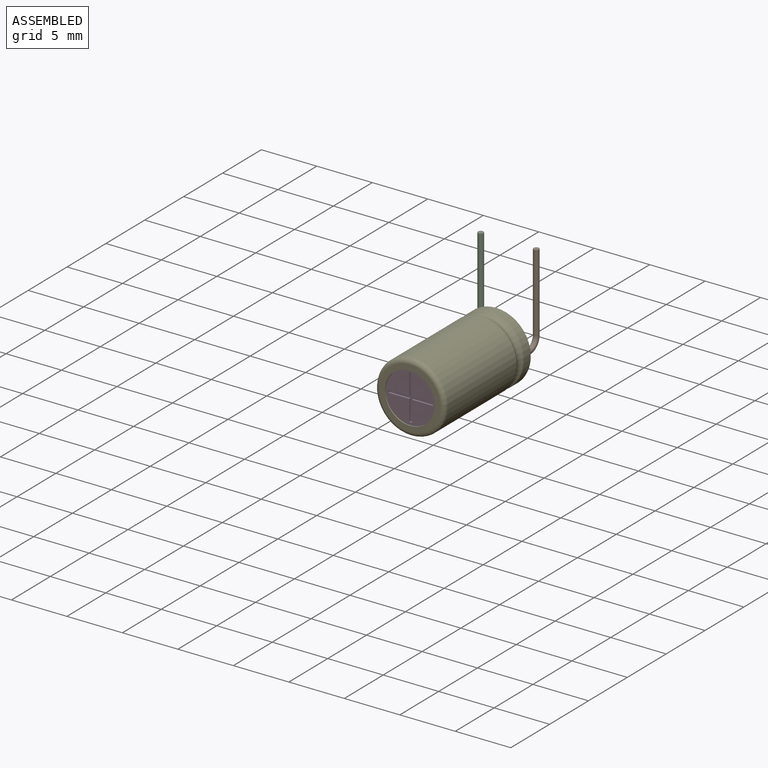
[diagram: assembled view]
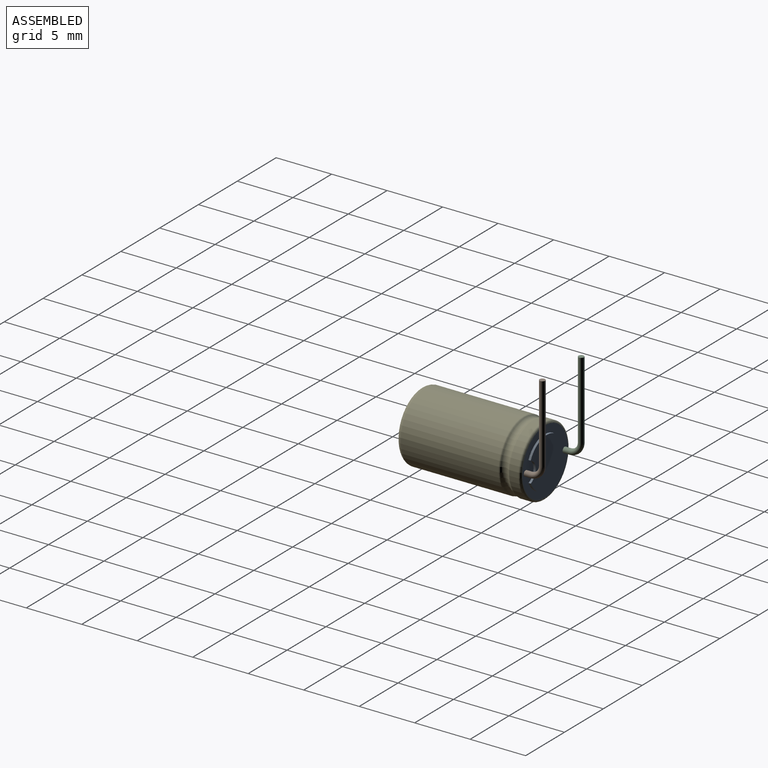
[diagram: assembled view, second angle]
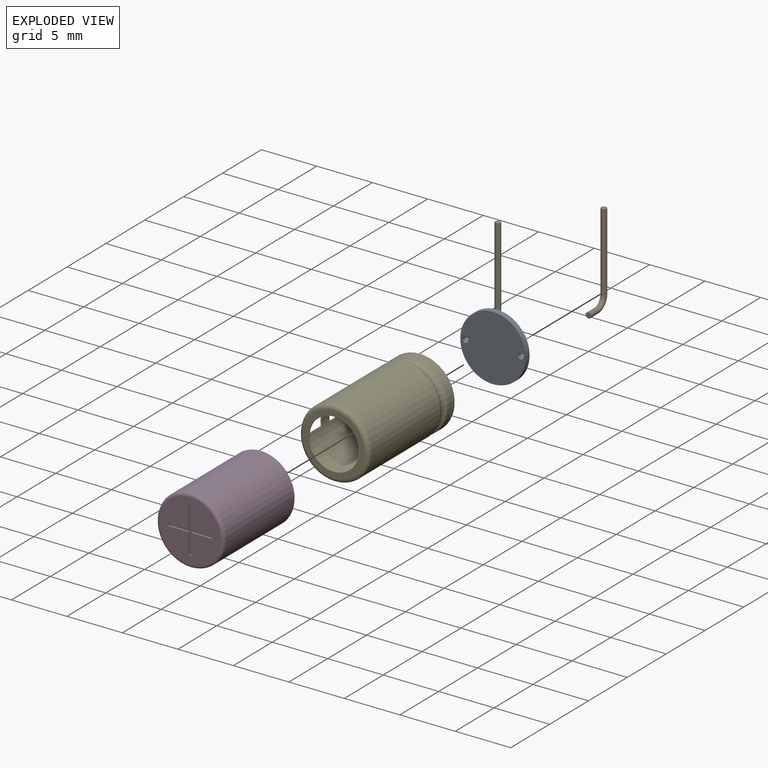
[diagram: exploded view]
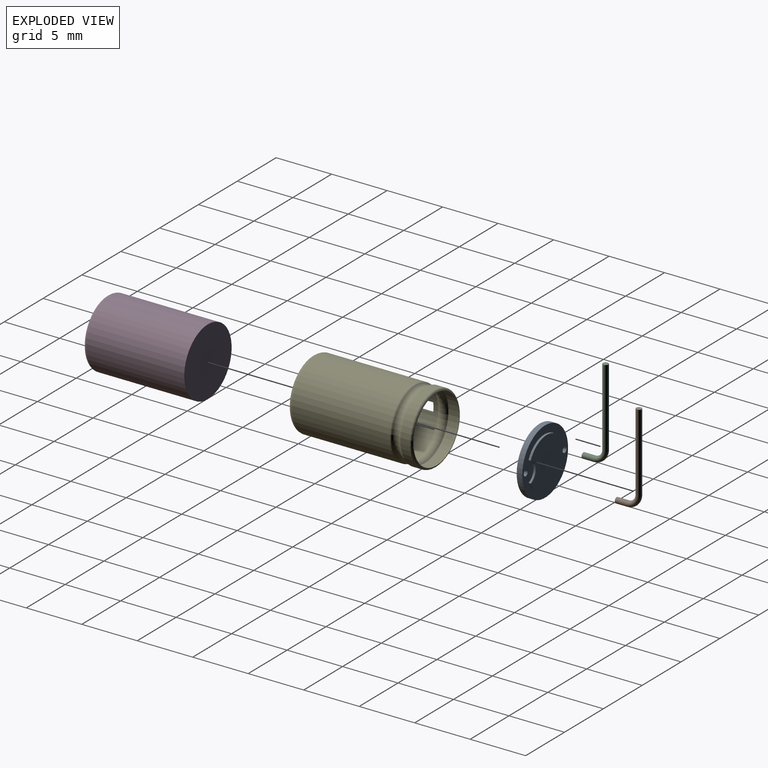
[diagram: exploded view, second angle]
ASSEMBLY  parts=5 mates=4
PART A: 10 faces, bbox 5.9x0.7x5.9 mm
  f0: plane 5.9x5.9mm, normal (0,-1,0), area 13mm2, adj f1,f3,f4,f5,f6,f7,f8
  f1: cylinder r=2.95mm len=5.9mm, axis (0,1,0), area 9.3mm2, adj f0,f2
  f2: plane 5.9x5.9mm, normal (0,1,0), area 26.9mm2, adj f1,f3,f4
  f3: cylinder r=0.25mm len=0.5mm, axis (0,-1,0), area 0.8mm2, adj f0,f2
  f4: cylinder r=0.25mm len=0.5mm, axis (0,-1,0), area 0.8mm2, adj f0,f2
  f5: cylinder r=1mm len=1.87mm, axis (0,1,0), area 0.5mm2, adj f0,f6,f8,f9
  f6: cylinder r=2.25mm len=4.13mm, axis (0,1,0), area 1mm2, adj f0,f5,f7,f9
  f7: cylinder r=1mm len=1.71mm, axis (0,1,0), area 0.4mm2, adj f0,f6,f8,f9
  f8: cylinder r=2.25mm len=4.13mm, axis (0,1,0), area 1mm2, adj f0,f5,f7,f9
  f9: plane 4.5x4.13mm, normal (0,-1,0), area 14mm2, adj f5,f6,f7,f8
PART B: 5 faces, bbox 2.4x0.5x8.4 mm
  f0: plane 0.5x0.5mm, normal (1,0,0), area 0.2mm2, adj f2
  f1: plane 0.5x0.5mm, normal (0,0,-1), area 0.2mm2, adj f4
  f2: cylinder r=0.25mm len=1mm, axis (-1,0,0), area 1.6mm2, adj f0,f3
  f3: torus R=1mm, axis (0,-1,0), area 2.5mm2, adj f2,f4
  f4: cylinder r=0.25mm len=7mm, axis (0,0,-1), area 11mm2, adj f1,f3
PART C: same geometry as B
PART D: 17 faces, bbox 6.6x9.1x6.6 mm
  f0: plane 5.5x5.5mm, normal (0,-1,0), area 21.8mm2, adj f3,f4,f5,f6,f7,f8,f9,f10
  f1: cylinder r=3.05mm len=8.81mm, axis (0,1,0), area 168.8mm2, adj f2,f3
  f2: plane 6.1x6.1mm, normal (0,1,0), area 29.2mm2, adj f1
  f3: torus R=2.75mm, axis (0,-1,0), area 8.7mm2, adj f0,f1
  f4: plane 1.88x0.15mm, normal (-1,0,0), area 0.3mm2, adj f0,f5,f15,f16
  f5: plane 0.25x0.15mm, normal (0,0,-1), area 0mm2, adj f0,f4,f6,f16
  f6: plane 1.88x0.15mm, normal (1,0,0), area 0.3mm2, adj f0,f5,f7,f16
  f7: plane 1.88x0.15mm, normal (0,0,-1), area 0.3mm2, adj f0,f6,f8,f16
  f8: plane 0.25x0.15mm, normal (1,0,0), area 0mm2, adj f0,f7,f9,f16
  f9: plane 1.88x0.15mm, normal (0,0,1), area 0.3mm2, adj f0,f8,f10,f16
  f10: plane 1.88x0.15mm, normal (1,0,0), area 0.3mm2, adj f0,f9,f11,f16
  f11: plane 0.25x0.15mm, normal (0,0,1), area 0mm2, adj f0,f10,f12,f16
  f12: plane 1.88x0.15mm, normal (-1,0,0), area 0.3mm2, adj f0,f11,f13,f16
  f13: plane 1.88x0.15mm, normal (0,0,1), area 0.3mm2, adj f0,f12,f14,f16
  f14: plane 0.25x0.15mm, normal (-1,0,0), area 0mm2, adj f0,f13,f15,f16
  f15: plane 1.88x0.15mm, normal (0,0,-1), area 0.3mm2, adj f0,f4,f14,f16
  f16: plane 4x4mm, normal (0,-1,0), area 1.9mm2, adj f4,f5,f6,f7,f8,f9,f10,f11
PART E: 30 faces, bbox 6.8x11.2x6.8 mm
  f0: cylinder r=3.15mm len=8.81mm, axis (0,1,0), area 169.6mm2, adj f4,f6,f18,f19,f20,f21,f22,f23
  f1: cylinder r=3.05mm len=8.81mm, axis (0,1,0), area 164mm2, adj f12,f14,f18,f19,f20,f21,f22,f23
  f2: plane 5.5x5.5mm, normal (0,-1,0), area 7.9mm2, adj f4,f17
  f3: cylinder r=3.15mm len=6.3mm, axis (0,1,0), area 16mm2, adj f7,f8
  f4: torus R=2.75mm, axis (0,-1,0), area 11.9mm2, adj f0,f2
  f5: torus R=3.45mm, axis (0,1,0), area 14.6mm2, adj f6,f7
  f6: torus R=2.95mm, axis (0,1,0), area 3mm2, adj f0,f5
  f7: torus R=2.95mm, axis (0,1,0), area 3mm2, adj f3,f5
  f8: torus R=2.95mm, axis (0,-1,0), area 6.1mm2, adj f3,f9
  f9: cylinder r=2.95mm len=5.9mm, axis (0,-1,0), area 1.9mm2, adj f8,f16
  f10: plane 5.5x5.5mm, normal (0,1,0), area 7.9mm2, adj f12,f17
  f11: cylinder r=3.05mm len=6.1mm, axis (0,1,0), area 15.5mm2, adj f15,f16
  f12: torus R=2.75mm, axis (0,-1,0), area 8.7mm2, adj f1,f10
  f13: torus R=3.45mm, axis (0,1,0), area 17mm2, adj f14,f15
  f14: torus R=2.95mm, axis (0,1,0), area 1.5mm2, adj f1,f13
  f15: torus R=2.95mm, axis (0,1,0), area 1.5mm2, adj f11,f13
  f16: torus R=2.95mm, axis (0,-1,0), area 3mm2, adj f9,f11
  f17: cylinder r=2.25mm len=4.5mm, axis (0,-1,0), area 1.4mm2, adj f2,f10
  f18: plane 0.8x0.13mm, normal (0,-1,0), area 0.1mm2, adj f0,f1,f19,f21
  f19: plane 2x0.1mm, normal (0,0,-1), area 0.2mm2, adj f0,f1,f18,f20
  f20: plane 0.8x0.13mm, normal (0,1,0), area 0.1mm2, adj f0,f1,f19,f21
  f21: plane 2x0.1mm, normal (0,0,1), area 0.2mm2, adj f0,f1,f18,f20
  f22: plane 2x0.1mm, normal (0,0,1), area 0.2mm2, adj f0,f1,f23,f25
  f23: plane 0.8x0.13mm, normal (0,-1,0), area 0.1mm2, adj f0,f1,f22,f24
  f24: plane 2x0.1mm, normal (0,0,-1), area 0.2mm2, adj f0,f1,f23,f25
  f25: plane 0.8x0.13mm, normal (0,1,0), area 0.1mm2, adj f0,f1,f22,f24
  f26: plane 0.8x0.13mm, normal (0,-1,0), area 0.1mm2, adj f0,f1,f27,f29
  f27: plane 2x0.1mm, normal (0,0,-1), area 0.2mm2, adj f0,f1,f26,f28
  f28: plane 0.8x0.13mm, normal (0,1,0), area 0.1mm2, adj f0,f1,f27,f29
  f29: plane 2x0.1mm, normal (0,0,1), area 0.2mm2, adj f0,f1,f26,f28
PLACE A rot(axis=(1,0,0),180deg) t=(-1.91,5.42,2.13)mm
PLACE B rot(axis=(0.71,-0.71,0),180deg) t=(0.59,5.42,2.13)mm
PLACE C rot(axis=(0.71,-0.71,0),180deg) t=(-4.41,5.42,2.13)mm
PLACE D t=(-1.91,3.93,2.13)mm
PLACE E t=(-1.91,5.92,2.13)mm
MATE fastened B.f2 <-> A.f3  axis (0,-1,0) through (0.59,5.42,2.13)mm
MATE fastened A.f1 <-> E.f0  axis (0,1,0) through (-1.91,5.92,2.13)mm
MATE fastened D.f1 <-> E.f17  axis (0,-1,0) through (-1.91,-5.18,2.13)mm
MATE fastened C.f2 <-> A.f4  axis (0,1,0) through (-4.41,5.42,2.13)mm
